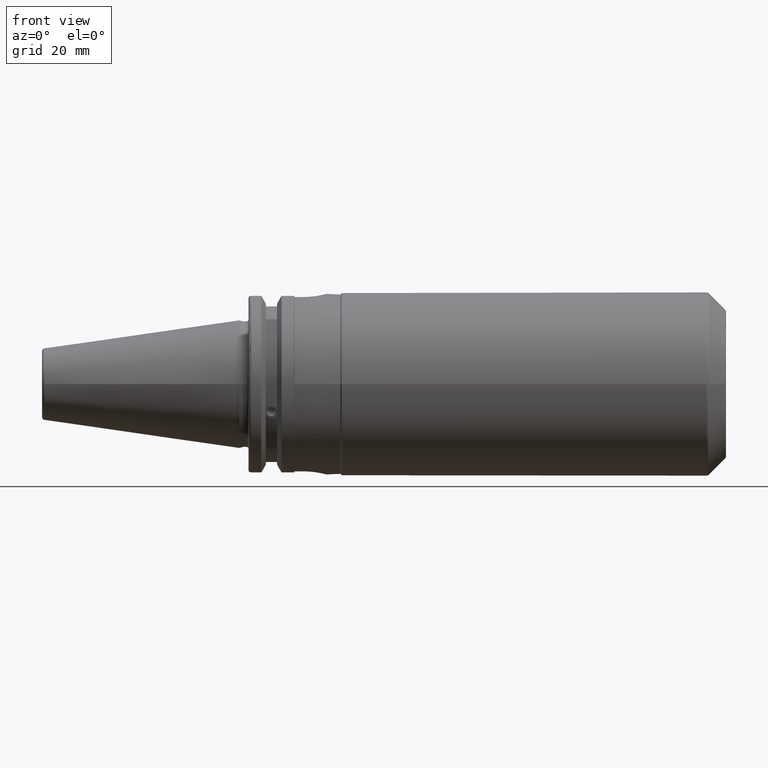
[diagram: clean part render]
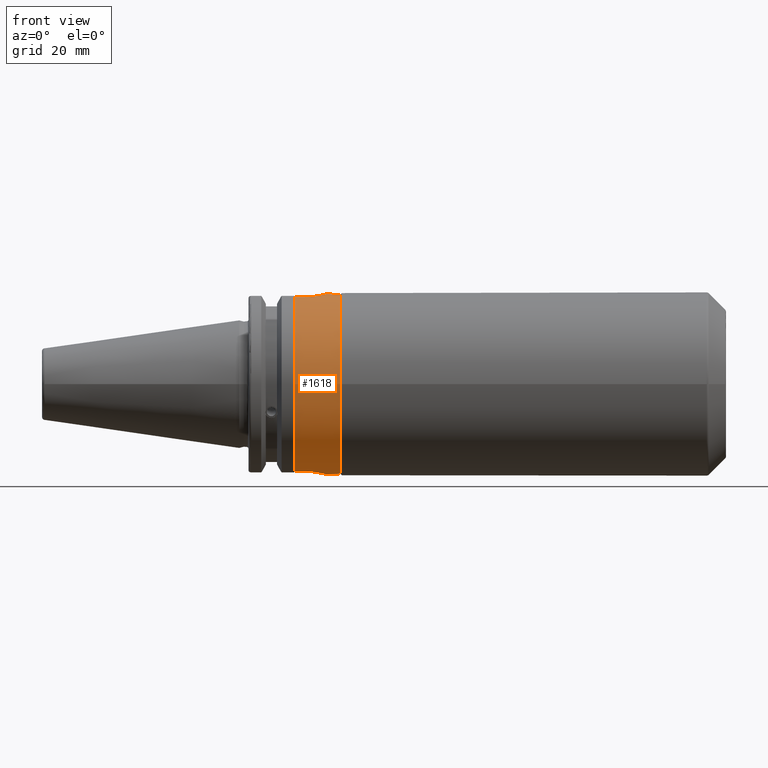
[diagram: same view with one face highlighted and labeled with its STEP entity id]
A machine part, front view. The second image highlights one B-rep face of the part: STEP entity #1618.
In plain terms, the highlighted cylindrical surface (bore or boss wall) has radius 31.25 mm, axis along (1, 0, 0).
Its self-contained STEP definition (entity closure, byte-faithful):
#114=CYLINDRICAL_SURFACE('',#1739,31.25);
#151=FACE_OUTER_BOUND('',#243,.T.);
#243=EDGE_LOOP('',(#1117,#1118,#1119,#1120,#1121,#1122,#1123,#1124,#1125,
#1126,#1127,#1128));
#361=B_SPLINE_CURVE_WITH_KNOTS('',3,(#2633,#2634,#2635,#2636,#2637,#2638,
#2639,#2640,#2641,#2642,#2643,#2644,#2645,#2646,#2647,#2648,#2649,#2650),
 .UNSPECIFIED.,.F.,.F.,(4,2,2,2,2,2,2,2,4),(-2.48058401696442,-2.1704846734033,
-1.86038532984218,-1.5503386691622,-1.24029200848221,-0.930245347802225,
-0.620198687122238,-0.310099343561119,0.),.UNSPECIFIED.);
#362=B_SPLINE_CURVE_WITH_KNOTS('',3,(#2655,#2656,#2657,#2658,#2659,#2660,
#2661,#2662,#2663,#2664,#2665,#2666,#2667,#2668,#2669,#2670,#2671,#2672),
 .UNSPECIFIED.,.F.,.F.,(4,2,2,2,2,2,2,2,4),(-2.48058401696442,-2.1704846734033,
-1.86038532984218,-1.5503386691622,-1.24029200848221,-0.930245347802224,
-0.620198687122237,-0.310099343561118,0.),.UNSPECIFIED.);
#398=CIRCLE('',#1738,31.25);
#399=CIRCLE('',#1740,31.25);
#400=CIRCLE('',#1741,31.25);
#401=CIRCLE('',#1742,31.25);
#482=LINE('',#2627,#574);
#483=LINE('',#2631,#575);
#484=LINE('',#2651,#576);
#485=LINE('',#2653,#577);
#486=LINE('',#2674,#578);
#574=VECTOR('',#1957,31.25);
#575=VECTOR('',#1960,10.);
#576=VECTOR('',#1961,10.);
#577=VECTOR('',#1962,10.);
#578=VECTOR('',#1963,10.);
#680=VERTEX_POINT('',#2608);
#681=VERTEX_POINT('',#2615);
#682=VERTEX_POINT('',#2624);
#683=VERTEX_POINT('',#2626);
#684=VERTEX_POINT('',#2628);
#685=VERTEX_POINT('',#2630);
#686=VERTEX_POINT('',#2632);
#687=VERTEX_POINT('',#2652);
#688=VERTEX_POINT('',#2654);
#689=VERTEX_POINT('',#2673);
#854=EDGE_CURVE('',#680,#681,#398,.T.);
#856=EDGE_CURVE('',#682,#682,#399,.T.);
#857=EDGE_CURVE('',#682,#683,#482,.T.);
#858=EDGE_CURVE('',#684,#683,#400,.T.);
#859=EDGE_CURVE('',#684,#685,#483,.T.);
#860=EDGE_CURVE('',#685,#686,#361,.T.);
#861=EDGE_CURVE('',#686,#681,#484,.T.);
#862=EDGE_CURVE('',#680,#687,#485,.T.);
#863=EDGE_CURVE('',#687,#688,#362,.T.);
#864=EDGE_CURVE('',#688,#689,#486,.T.);
#865=EDGE_CURVE('',#683,#689,#401,.T.);
#1117=ORIENTED_EDGE('',*,*,#856,.F.);
#1118=ORIENTED_EDGE('',*,*,#857,.T.);
#1119=ORIENTED_EDGE('',*,*,#858,.F.);
#1120=ORIENTED_EDGE('',*,*,#859,.T.);
#1121=ORIENTED_EDGE('',*,*,#860,.T.);
#1122=ORIENTED_EDGE('',*,*,#861,.T.);
#1123=ORIENTED_EDGE('',*,*,#854,.F.);
#1124=ORIENTED_EDGE('',*,*,#862,.T.);
#1125=ORIENTED_EDGE('',*,*,#863,.T.);
#1126=ORIENTED_EDGE('',*,*,#864,.T.);
#1127=ORIENTED_EDGE('',*,*,#865,.F.);
#1128=ORIENTED_EDGE('',*,*,#857,.F.);
#1618=ADVANCED_FACE('',(#151),#114,.T.);
#1738=AXIS2_PLACEMENT_3D('',#2616,#1951,#1952);
#1739=AXIS2_PLACEMENT_3D('',#2623,#1953,#1954);
#1740=AXIS2_PLACEMENT_3D('',#2625,#1955,#1956);
#1741=AXIS2_PLACEMENT_3D('',#2629,#1958,#1959);
#1742=AXIS2_PLACEMENT_3D('',#2675,#1964,#1965);
#1951=DIRECTION('center_axis',(-1.,0.,0.));
#1952=DIRECTION('ref_axis',(0.,1.,0.));
#1953=DIRECTION('center_axis',(1.,0.,0.));
#1954=DIRECTION('ref_axis',(0.,1.,0.));
#1955=DIRECTION('center_axis',(1.,0.,0.));
#1956=DIRECTION('ref_axis',(0.,0.,-1.));
#1957=DIRECTION('',(-1.,0.,0.));
#1958=DIRECTION('center_axis',(-1.,0.,0.));
#1959=DIRECTION('ref_axis',(0.,1.,0.));
#1960=DIRECTION('',(1.,0.,0.));
#1961=DIRECTION('',(-1.,0.,0.));
#1962=DIRECTION('',(1.,0.,0.));
#1963=DIRECTION('',(-1.,0.,0.));
#1964=DIRECTION('center_axis',(-1.,0.,0.));
#1965=DIRECTION('ref_axis',(0.,1.,0.));
#2608=CARTESIAN_POINT('',(19.25,8.18999999999999,30.157692219399));
#2615=CARTESIAN_POINT('',(19.25,8.19000000000001,-30.157692219399));
#2616=CARTESIAN_POINT('Origin',(19.25,0.,0.));
#2623=CARTESIAN_POINT('Origin',(27.025,0.,0.));
#2624=CARTESIAN_POINT('',(35.,-31.25,-3.82702124733548E-15));
#2625=CARTESIAN_POINT('Origin',(35.,0.,0.));
#2626=CARTESIAN_POINT('',(19.05,-31.25,-3.82702124733548E-15));
#2627=CARTESIAN_POINT('',(27.025,-31.25,-3.82702124733548E-15));
#2628=CARTESIAN_POINT('',(19.05,-8.19,-30.157692219399));
#2629=CARTESIAN_POINT('Origin',(19.05,0.,0.));
#2630=CARTESIAN_POINT('',(21.985,-8.19,-30.157692219399));
#2631=CARTESIAN_POINT('',(27.025,-8.19,-30.157692219399));
#2632=CARTESIAN_POINT('',(21.985,8.19000000000001,-30.157692219399));
#2633=CARTESIAN_POINT('Ctrl Pts',(21.985,-8.19,-30.157692219399));
#2634=CARTESIAN_POINT('Ctrl Pts',(23.0186644785371,-8.19,-30.157692219399));
#2635=CARTESIAN_POINT('Ctrl Pts',(24.1177289031099,-7.98242969105082,-30.2163776881057));
#2636=CARTESIAN_POINT('Ctrl Pts',(26.1340267300331,-7.14515921681833,-30.4252421272864));
#2637=CARTESIAN_POINT('Ctrl Pts',(27.0517065657426,-6.51570251009308,-30.5720736251644));
#2638=CARTESIAN_POINT('Ctrl Pts',(28.5005794248904,-5.06682965094524,-30.8453094903202));
#2639=CARTESIAN_POINT('Ctrl Pts',(29.130131960371,-4.14909882987699,-30.9899080370957));
#2640=CARTESIAN_POINT('Ctrl Pts',(29.967472555723,-2.13261921574188,-31.193610827595));
#2641=CARTESIAN_POINT('Ctrl Pts',(30.175,-1.03348886893329,-31.25));
#2642=CARTESIAN_POINT('Ctrl Pts',(30.175,1.03348886893329,-31.25));
#2643=CARTESIAN_POINT('Ctrl Pts',(29.967472555723,2.13261921574189,-31.193610827595));
#2644=CARTESIAN_POINT('Ctrl Pts',(29.130131960371,4.14909882987699,-30.9899080370957));
#2645=CARTESIAN_POINT('Ctrl Pts',(28.5005794248904,5.06682965094524,-30.8453094903202));
#2646=CARTESIAN_POINT('Ctrl Pts',(27.0517065657426,6.51570251009308,-30.5720736251644));
#2647=CARTESIAN_POINT('Ctrl Pts',(26.1340267300331,7.14515921681833,-30.4252421272864));
#2648=CARTESIAN_POINT('Ctrl Pts',(24.1177289031099,7.98242969105081,-30.2163776881057));
#2649=CARTESIAN_POINT('Ctrl Pts',(23.0186644785371,8.19,-30.157692219399));
#2650=CARTESIAN_POINT('Ctrl Pts',(21.985,8.19,-30.157692219399));
#2651=CARTESIAN_POINT('',(27.025,8.19000000000001,-30.157692219399));
#2652=CARTESIAN_POINT('',(21.985,8.18999999999999,30.157692219399));
#2653=CARTESIAN_POINT('',(27.025,8.18999999999999,30.157692219399));
#2654=CARTESIAN_POINT('',(21.985,-8.19,30.157692219399));
#2655=CARTESIAN_POINT('Ctrl Pts',(21.985,8.19,30.157692219399));
#2656=CARTESIAN_POINT('Ctrl Pts',(23.0186644785371,8.19,30.157692219399));
#2657=CARTESIAN_POINT('Ctrl Pts',(24.1177289031099,7.98242969105081,30.2163776881057));
#2658=CARTESIAN_POINT('Ctrl Pts',(26.1340267300331,7.14515921681832,30.4252421272864));
#2659=CARTESIAN_POINT('Ctrl Pts',(27.0517065657426,6.51570251009308,30.5720736251644));
#2660=CARTESIAN_POINT('Ctrl Pts',(28.5005794248904,5.06682965094524,30.8453094903202));
#2661=CARTESIAN_POINT('Ctrl Pts',(29.130131960371,4.14909882987699,30.9899080370957));
#2662=CARTESIAN_POINT('Ctrl Pts',(29.967472555723,2.13261921574189,31.193610827595));
#2663=CARTESIAN_POINT('Ctrl Pts',(30.175,1.0334888689333,31.25));
#2664=CARTESIAN_POINT('Ctrl Pts',(30.175,-1.03348886893328,31.25));
#2665=CARTESIAN_POINT('Ctrl Pts',(29.967472555723,-2.13261921574188,31.193610827595));
#2666=CARTESIAN_POINT('Ctrl Pts',(29.130131960371,-4.14909882987698,30.9899080370957));
#2667=CARTESIAN_POINT('Ctrl Pts',(28.5005794248904,-5.06682965094523,30.8453094903202));
#2668=CARTESIAN_POINT('Ctrl Pts',(27.0517065657426,-6.51570251009307,30.5720736251644));
#2669=CARTESIAN_POINT('Ctrl Pts',(26.1340267300331,-7.14515921681832,30.4252421272864));
#2670=CARTESIAN_POINT('Ctrl Pts',(24.1177289031099,-7.98242969105081,30.2163776881057));
#2671=CARTESIAN_POINT('Ctrl Pts',(23.0186644785371,-8.18999999999999,30.157692219399));
#2672=CARTESIAN_POINT('Ctrl Pts',(21.985,-8.18999999999999,30.157692219399));
#2673=CARTESIAN_POINT('',(19.05,-8.19,30.157692219399));
#2674=CARTESIAN_POINT('',(27.025,-8.19,30.157692219399));
#2675=CARTESIAN_POINT('Origin',(19.05,0.,0.));